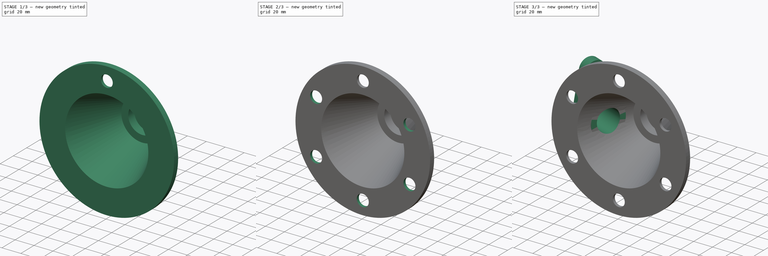
[diagram: build sequence overview — one tinted view per stage of 3, left to right]
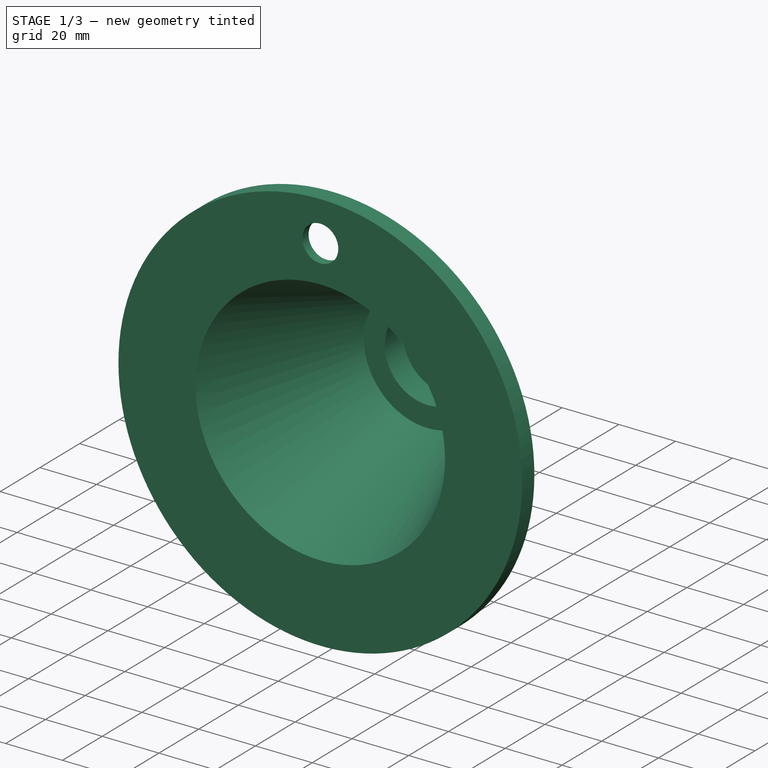
[diagram: stage 1 of 3 — iso view after this stage's code; geometry added in this stage tinted green]
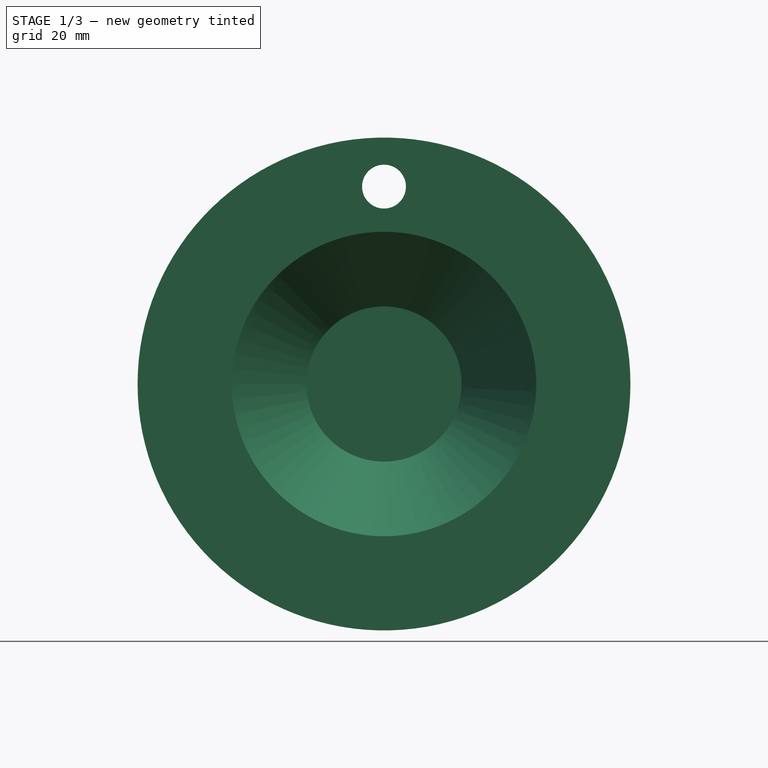
[diagram: stage 1 of 3 — front view after this stage's code; geometry added in this stage tinted green]
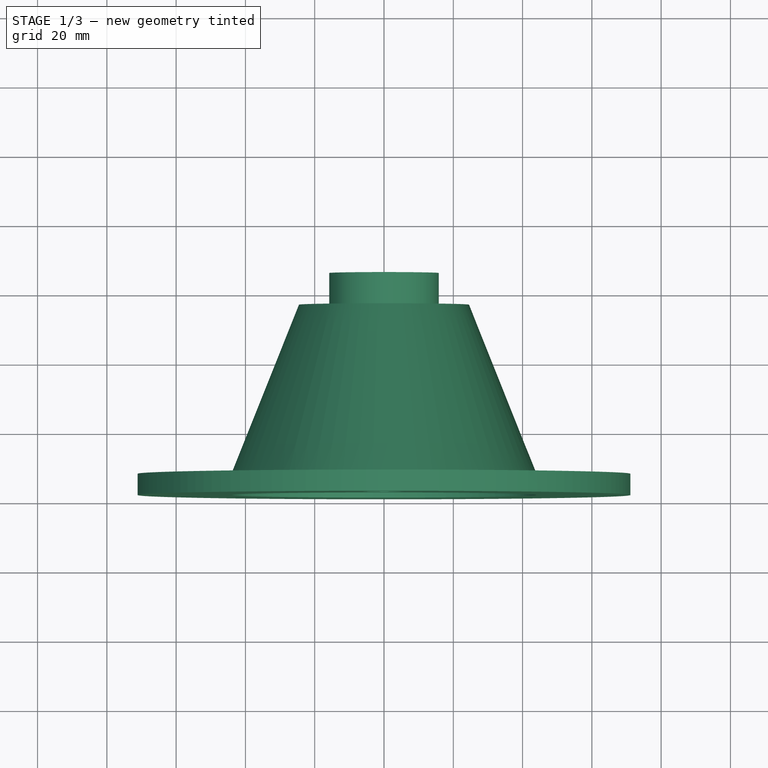
[diagram: stage 1 of 3 — top view after this stage's code; geometry added in this stage tinted green]
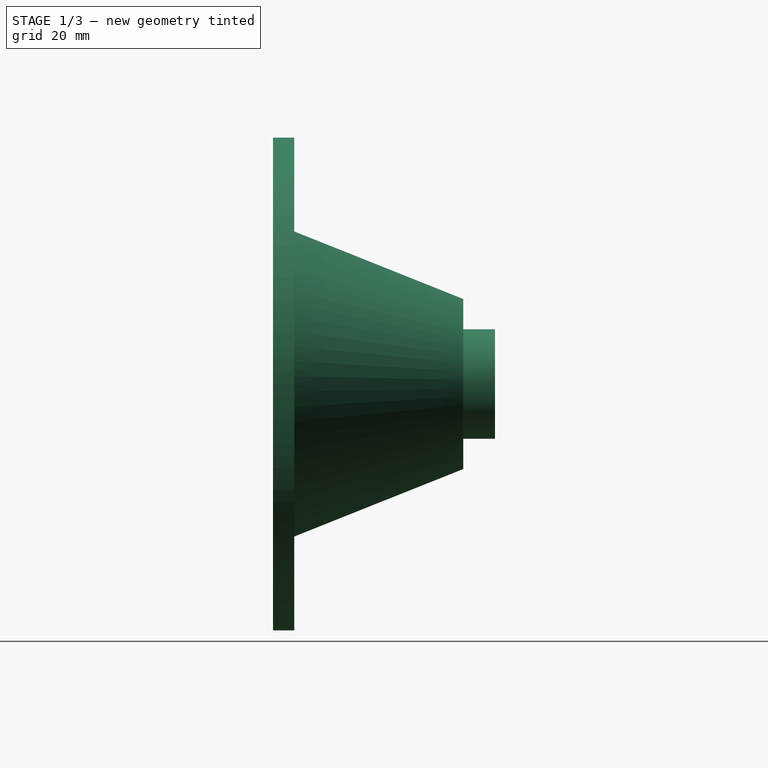
[diagram: stage 1 of 3 — right view after this stage's code; geometry added in this stage tinted green]
FCSTD DOCUMENT  (FreeCAD 0.21R33771 (Git))
Label: ex60
License: All rights reserved
LicenseURL: http://en.wikipedia.org/wiki/All_rights_reserved
objects: Sketcher::SketchObject×6, PartDesign::Pocket×3, PartDesign::Pad×2, PartDesign::Revolution×1, PartDesign::Chamfer×1, PartDesign::PolarPattern×1, PartDesign::Plane×1, PartDesign::Body×1
note: 23 computed .brp shape members not serialized (recipe doc carries the construction recipe); baked Part::Feature solids carry a one-line shape summary decoded from their .brp

FEATURE [Sketcher::SketchObject] Sketch
  FullyConstrained = false
  MapMode = 5
  Support = -> [XY_Plane]
  sketch-geometry (13):
    g0: LineSegment StartX=0 StartY=45.3142 StartZ=0 EndX=-15.7988 EndY=45.3142 EndZ=0
    g1: LineSegment StartX=-15.7988 StartY=45.3142 StartZ=0 EndX=-15.7988 EndY=36.1568 EndZ=0
    g2: LineSegment StartX=-15.0582 StartY=44.3428 StartZ=0 EndX=0 EndY=44.3428 EndZ=0
    g3: LineSegment StartX=0 StartY=44.3428 StartZ=0 EndX=0 EndY=45.3142 EndZ=0
    g4: LineSegment StartX=-15.0582 StartY=44.3428 StartZ=0 EndX=-15.0582 EndY=35.1568 EndZ=0
    g5: LineSegment StartX=-15.0582 StartY=35.1568 StartZ=0 EndX=-17.275 EndY=35.1568 EndZ=0
    g6: LineSegment StartX=-17.275 StartY=35.1568 StartZ=0 EndX=-22.3883 EndY=35.1568 EndZ=0
    g7: LineSegment StartX=-24.5451 StartY=36.1568 StartZ=0 EndX=-15.7988 EndY=36.1568 EndZ=0
    g8: LineSegment StartX=-24.5451 StartY=36.1568 StartZ=0 EndX=-44.0492 EndY=-12.6519 EndZ=0
    g9: LineSegment StartX=-22.3883 StartY=35.1568 StartZ=0 EndX=-43.9407 EndY=-18.7779 EndZ=0
    g10: LineSegment StartX=-44.0492 StartY=-12.6519 StartZ=0 EndX=-71.1315 EndY=-12.6519 EndZ=0
    g11: LineSegment StartX=-71.1315 StartY=-12.6519 StartZ=0 EndX=-71.1315 EndY=-18.7779 EndZ=0
    g12: LineSegment StartX=-43.9407 StartY=-18.7779 StartZ=0 EndX=-71.1315 EndY=-18.7779 EndZ=0
  constraints (26):
    c: Coincident(g0,g1)
    c: Coincident(g2,g3)
    c: Coincident(g3,g0)
    c: Horizontal(g0)
    c: Horizontal(g2)
    c: Vertical(g1)
    c: Vertical(g3)
    c: PointOnObject(g0,g-2)
    c: Coincident(g4,g5)
    c: Horizontal(g5)
    c: Vertical(g4)
    c: Horizontal(g6)
    c: Horizontal(g7)
    c: Coincident(g6,g5)
    c: DistanceY(g5,g7) = 1
    c: Coincident(g9,g6)
    c: Parallel(g8,g9)
    c: Coincident(g10,g11)
    c: Horizontal(g10)
    c: Vertical(g11)
    c: Coincident(g10,g8)
    c: Horizontal(g12)
    c: Coincident(g11,g12)
    c: Coincident(g9,g12)
    c: Coincident(g1,g7)
    c: Coincident(g7,g8)
FEATURE [PartDesign::Revolution] Revolution
  Angle = 360
  Axis = (0,1,0)
  Base = (0,0,0)
  Profile = -> Sketch
  ReferenceAxis = -> Sketch [V_Axis]
  Refine = true
FEATURE [Sketcher::SketchObject] Sketch001
  FullyConstrained = false
  MapMode = 5
  Placement = pos=(0,-12.6519,0) rot=(0,0.707107,0.707107;3.14159rad)
  Support = -> [Revolution]
  sketch-geometry (1):
    g0: Circle CenterX=0 CenterY=56.9745 CenterZ=0 NormalX=0 NormalY=0 NormalZ=1 AngleXU=0 Radius=6.32854
  constraints (1):
    c: PointOnObject(g0,g-2)
FEATURE [PartDesign::Pocket] Pocket
  BaseFeature = -> Revolution
  Direction = (0,-1,2e-16)
  Length = 5
  Length2 = 5
  Profile = -> Sketch001
  ReferenceAxis = -> Sketch001 [N_Axis]
  Refine = true
  Type = 1
FEATURE [PartDesign::Chamfer] Chamfer
  Angle = 45
  Base = -> Pocket [Edge8]
  BaseFeature = -> Pocket
  ChamferType = 0
  FlipDirection = false
  Refine = true
  Size = 3
  Size2 = 1
  SupportTransform = false
  UseAllEdges = false
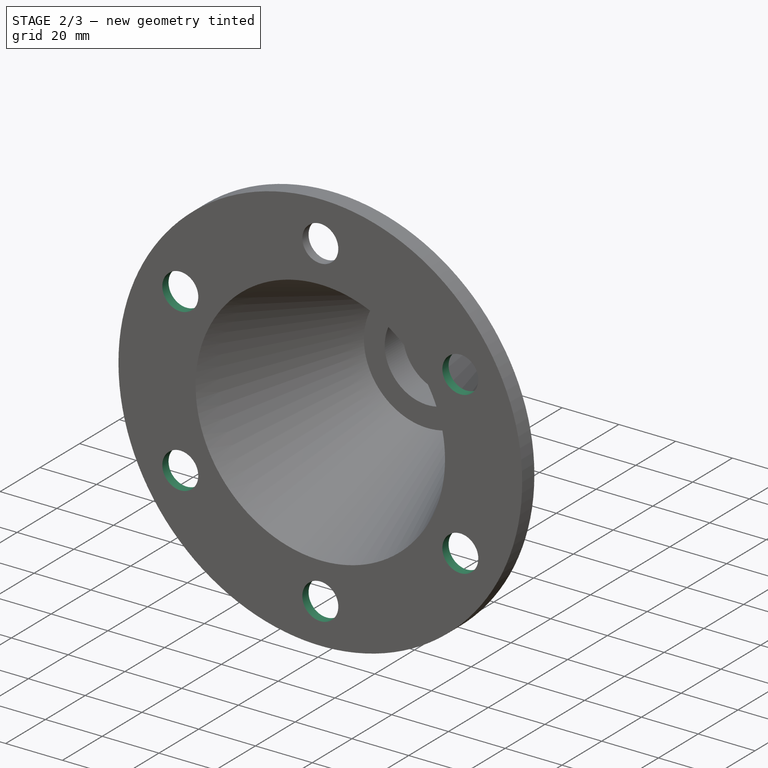
[diagram: stage 2 of 3 — iso view after this stage's code; geometry added in this stage tinted green]
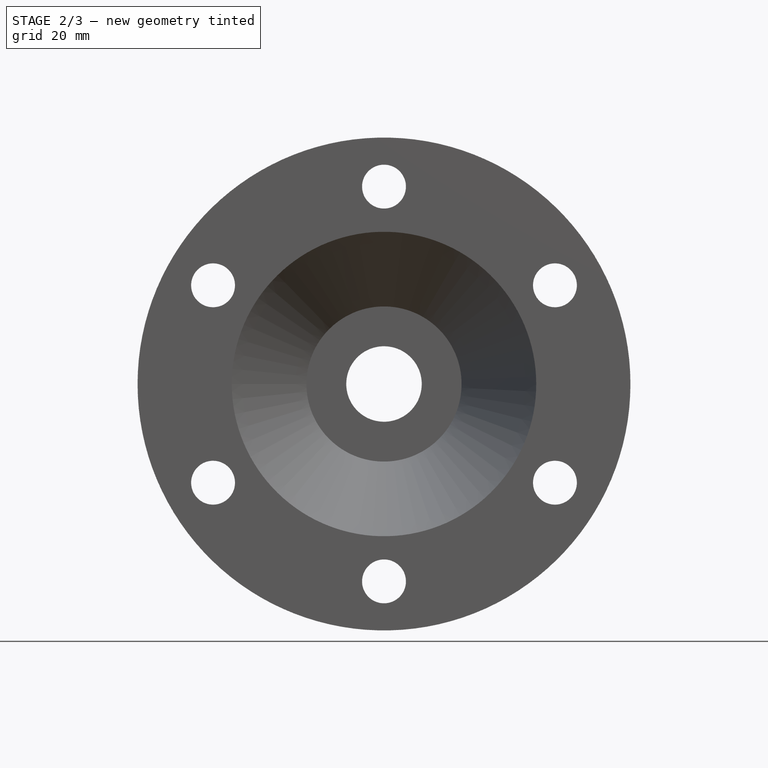
[diagram: stage 2 of 3 — front view after this stage's code; geometry added in this stage tinted green]
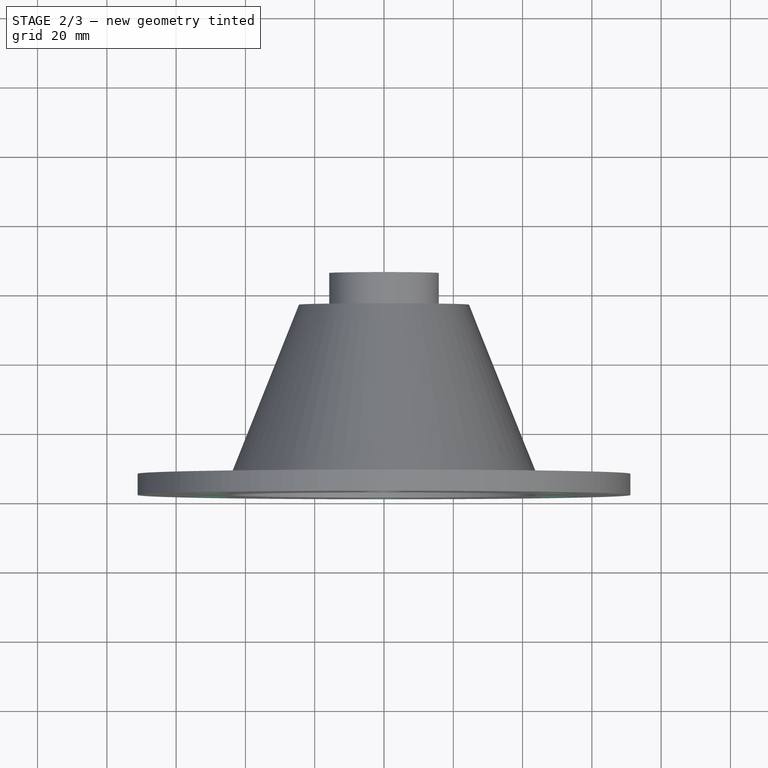
[diagram: stage 2 of 3 — top view after this stage's code; geometry added in this stage tinted green]
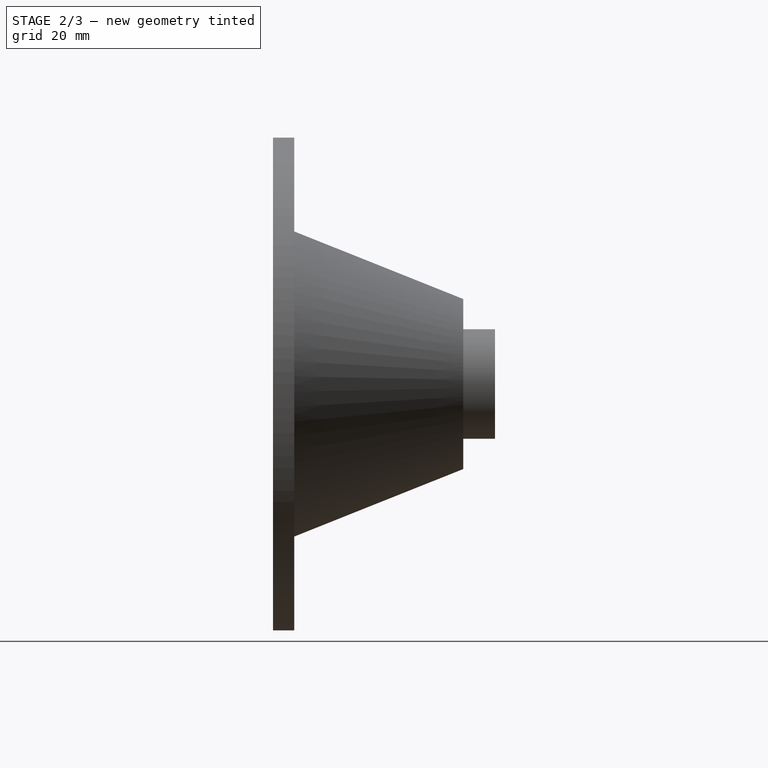
[diagram: stage 2 of 3 — right view after this stage's code; geometry added in this stage tinted green]
FEATURE [PartDesign::PolarPattern] PolarPattern
  Angle = 360
  Axis = -> Sketch001 [N_Axis]
  BaseFeature = -> Chamfer
  Occurrences = 6
  Originals = -> [Pocket,Chamfer]
  Refine = true
FEATURE [Sketcher::SketchObject] Sketch002
  FullyConstrained = false
  MapMode = 5
  Placement = pos=(0,45.3142,0) rot=(0,0.707107,0.707107;3.14159rad)
  Support = -> [PolarPattern]
  sketch-geometry (1):
    g0: Circle CenterX=0 CenterY=0 CenterZ=0 NormalX=0 NormalY=0 NormalZ=1 AngleXU=0 Radius=10.8914
  constraints (1):
    c: Coincident(g0,g-1)
FEATURE [PartDesign::Pocket] Pocket001
  BaseFeature = -> PolarPattern
  Direction = (0,-1,2e-16)
  Length = 15
  Length2 = 5
  Profile = -> Sketch002
  ReferenceAxis = -> Sketch002 [N_Axis]
  Refine = true
  Type = 0
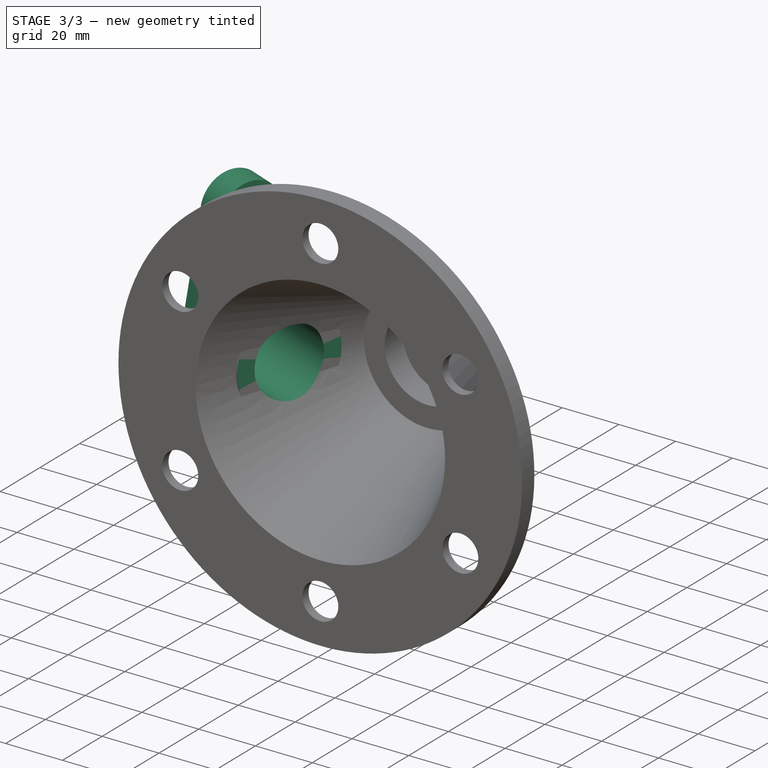
[diagram: stage 3 of 3 — iso view after this stage's code; geometry added in this stage tinted green]
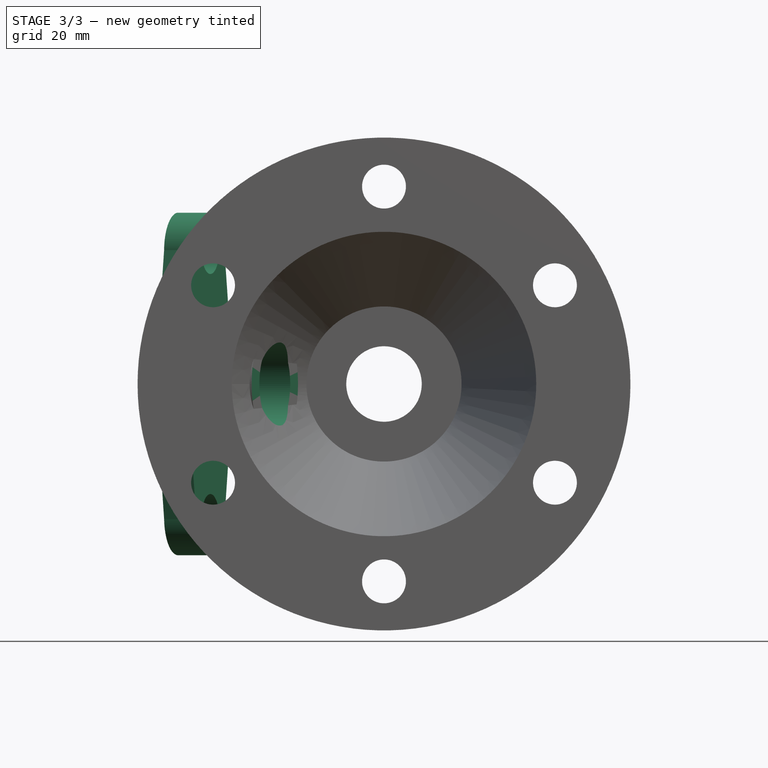
[diagram: stage 3 of 3 — front view after this stage's code; geometry added in this stage tinted green]
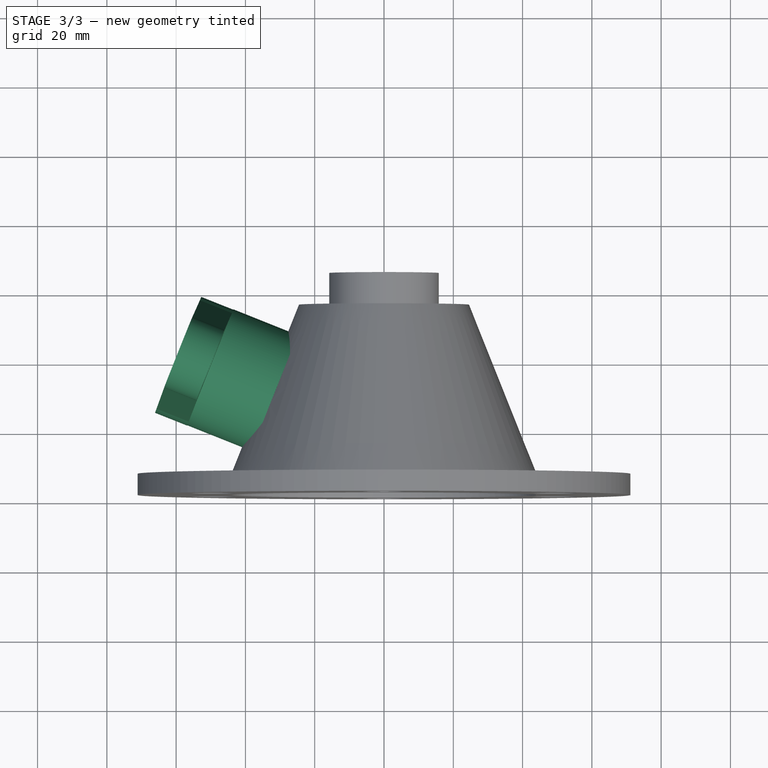
[diagram: stage 3 of 3 — top view after this stage's code; geometry added in this stage tinted green]
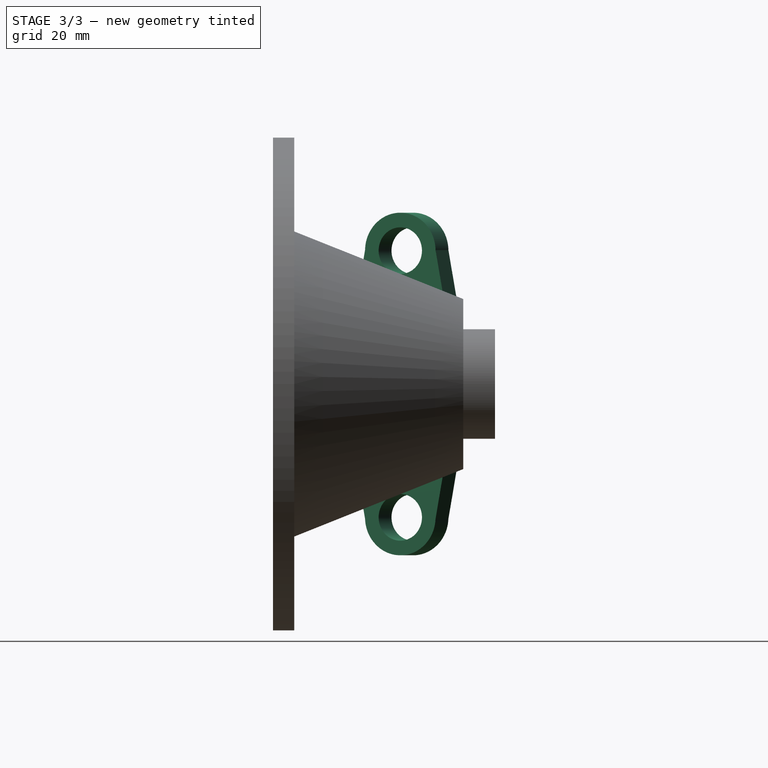
[diagram: stage 3 of 3 — right view after this stage's code; geometry added in this stage tinted green]
FEATURE [PartDesign::Plane] DatumPlane
  AttachmentOffset = pos=(0,0,0) rot=(-0.707107,0,0.707107;3.14159rad)
  Length = 143.875
  MapMode = 45
  Placement = pos=(-34.2972,11.7525,0) rot=(0.431933,-0.637744,0.637744;3.95705rad)
  ResizeMode = 0
  Support = -> [Sketch]
  Width = 168.017
FEATURE [Sketcher::SketchObject] Sketch003
  AttachmentOffset = pos=(0,0,-7) rot=(0,0,1;0rad)
  FullyConstrained = false
  MapMode = 5
  Placement = pos=(-40.7974,14.35,-4e-16) rot=(0.431933,-0.637744,0.637744;3.95705rad)
  Support = -> [DatumPlane]
  sketch-geometry (1):
    g0: Circle CenterX=0 CenterY=0 CenterZ=0 NormalX=0 NormalY=0 NormalZ=1 AngleXU=0 Radius=18.0037
  constraints (1):
    c: Coincident(g0,g-1)
FEATURE [PartDesign::Pad] Pad
  BaseFeature = -> Pocket001
  Direction = (0.928604,-0.371073,1e-16)
  Length = 10
  Length2 = 10
  Profile = -> Sketch003
  ReferenceAxis = -> Sketch003 [N_Axis]
  Refine = true
  Reversed = true
  Type = 4
FEATURE [Sketcher::SketchObject] Sketch004
  FullyConstrained = false
  MapMode = 5
  Placement = pos=(-49.4106,19.7446,-9.4e-15) rot=(-0.431933,0.637744,0.637744;3.95705rad)
  Support = -> [Pad]
  sketch-geometry (17):
    g0: ArcOfCircle CenterX=1.90782 CenterY=0 CenterZ=0 NormalX=0 NormalY=0 NormalZ=1 AngleXU=0 Radius=18.0096 StartAngle=2.78659 EndAngle=3.49659
    g1: LineSegment StartX=1.90782 StartY=38.4881 StartZ=0 EndX=1.90782 EndY=-38.4881 EndZ=0
    g2: ArcOfCircle CenterX=1.90782 CenterY=38.4881 CenterZ=0 NormalX=0 NormalY=0 NormalZ=1 AngleXU=0 Radius=10.9566 StartAngle=0.0142913 EndAngle=3.1273
    g3: ArcOfCircle CenterX=1.90782 CenterY=-38.4881 CenterZ=0 NormalX=0 NormalY=0 NormalZ=1 AngleXU=0 Radius=10.9566 StartAngle=3.18879 EndAngle=6.23599
    g4: LineSegment StartX=-9.04762 StartY=38.6447 StartZ=0 EndX=-14.9788 EndY=6.25998 EndZ=0
    g5: LineSegment StartX=-14.9788 StartY=-6.25998 StartZ=0 EndX=-9.03653 EndY=-39.0051 EndZ=0
    g6: LineSegment StartX=12.8522 StartY=-39.0051 StartZ=0 EndX=18.7944 EndY=-6.25998 EndZ=0
    g7: LineSegment StartX=18.7944 StartY=6.25998 StartZ=0 EndX=12.8633 EndY=38.6447 EndZ=0
    g8: LineSegment StartX=-9.04762 StartY=38.6447 StartZ=0 EndX=12.8633 EndY=38.6447 EndZ=0
    g9: LineSegment StartX=-14.9788 StartY=6.25998 StartZ=0 EndX=18.7944 EndY=6.25998 EndZ=0
    g10: LineSegment StartX=-14.9788 StartY=-6.25998 StartZ=0 EndX=18.7944 EndY=-6.25998 EndZ=0
    g11: LineSegment StartX=-14.9788 StartY=6.25998 StartZ=0 EndX=-14.9788 EndY=-6.25998 EndZ=0
    g12: LineSegment StartX=18.7944 StartY=-6.25998 StartZ=0 EndX=18.7944 EndY=6.25998 EndZ=0
    g13: LineSegment StartX=-9.03653 StartY=-39.0051 StartZ=0 EndX=12.8522 EndY=-39.0051 EndZ=0
    g14: ArcOfCircle CenterX=1.90782 CenterY=0 CenterZ=0 NormalX=0 NormalY=0 NormalZ=1 AngleXU=0 Radius=18.0096 StartAngle=5.92818 EndAngle=6.63819
    g15: Circle CenterX=1.90782 CenterY=38.4881 CenterZ=0 NormalX=0 NormalY=0 NormalZ=1 AngleXU=0 Radius=6.73373
    g16: Circle CenterX=1.90782 CenterY=-38.4881 CenterZ=0 NormalX=0 NormalY=0 NormalZ=1 AngleXU=0 Radius=6.73373
  constraints (38):
    c: PointOnObject(g0,g-1)
    c: Vertical(g1)
    c: Symmetric(g1,g1,g0)
    c: Coincident(g2,g1)
    c: Coincident(g3,g1)
    c: Equal(g3,g2)
    c: PointOnObject(g6,g0)
    c: PointOnObject(g7,g0)
    c: Coincident(g8,g4)
    c: Coincident(g8,g7)
    c: Horizontal(g8)
    c: Coincident(g9,g4)
    c: Coincident(g9,g7)
    c: Horizontal(g9)
    c: Coincident(g10,g5)
    c: Coincident(g10,g6)
    c: Horizontal(g10)
    c: Coincident(g11,g4)
    c: Coincident(g11,g5)
    c: Coincident(g12,g6)
    c: Coincident(g12,g7)
    c: Vertical(g12)
    c: Coincident(g13,g5)
    c: Coincident(g13,g6)
    c: Horizontal(g13)
    c: Coincident(g2,g7)
    c: Coincident(g2,g4)
    c: Coincident(g0,g4)
    c: Equal(g0,g14)
    c: Coincident(g0,g5)
    c: Coincident(g0,g14)
    c: Coincident(g3,g13)
    c: Coincident(g3,g6)
    c: PointOnObject(g14,g7)
    c: PointOnObject(g14,g6)
    c: Coincident(g15,g2)
    c: Coincident(g16,g3)
    c: Equal(g16,g15)
FEATURE [PartDesign::Pad] Pad001
  BaseFeature = -> Pad
  Direction = (-0.928604,0.371073,-2e-16)
  Length = 10
  Length2 = 10
  Profile = -> Sketch004
  ReferenceAxis = -> Sketch004 [N_Axis]
  Refine = true
  Type = 0
FEATURE [Sketcher::SketchObject] Sketch005
  FullyConstrained = false
  MapMode = 5
  Placement = pos=(-58.6966,23.4554,-1.18e-14) rot=(-0.431933,0.637744,0.637744;3.95705rad)
  Support = -> [Pad001]
  sketch-geometry (1):
    g0: Circle CenterX=1.84781 CenterY=0 CenterZ=0 NormalX=0 NormalY=0 NormalZ=1 AngleXU=0 Radius=11.997
  constraints (1):
    c: PointOnObject(g0,g-1)
FEATURE [PartDesign::Pocket] Pocket002
  BaseFeature = -> Pad001
  Direction = (0.928604,-0.371073,2e-16)
  Length = 35
  Length2 = 5
  Profile = -> Sketch005
  ReferenceAxis = -> Sketch005 [N_Axis]
  Refine = true
  Type = 0
FEATURE [PartDesign::Body] Body
  Group = -> [Sketch,Revolution,Sketch001,Pocket,Chamfer,PolarPattern,Sketch002,Pocket001,DatumPlane,Sketch003,Pad,Sketch004,Pad001,Sketch005,Pocket002]
  Origin = -> Origin
  Tip = -> Pocket002
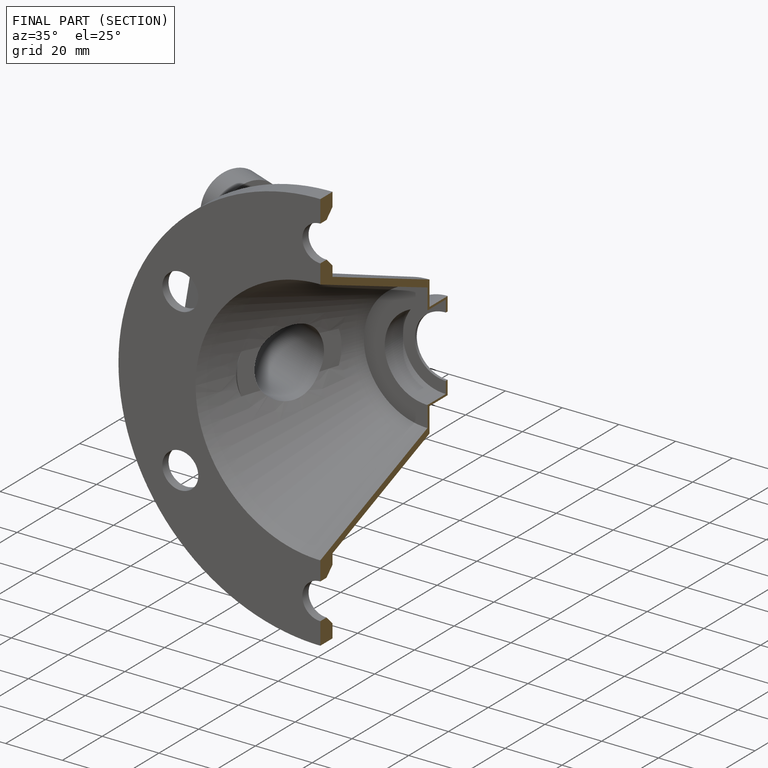
[diagram: finished part — half-section view (interior)]
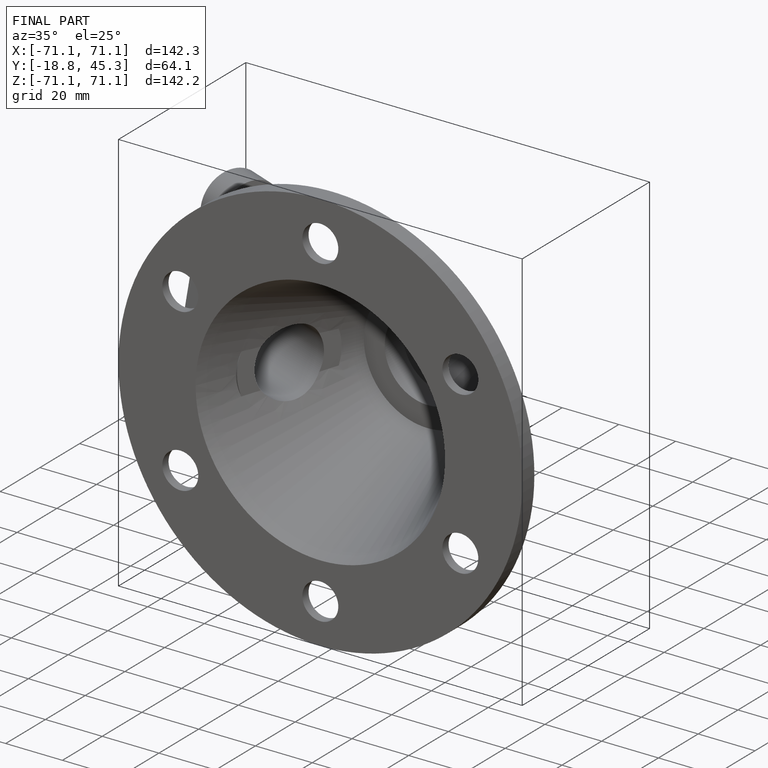
[diagram: finished part — iso view with bounding-box wireframe]
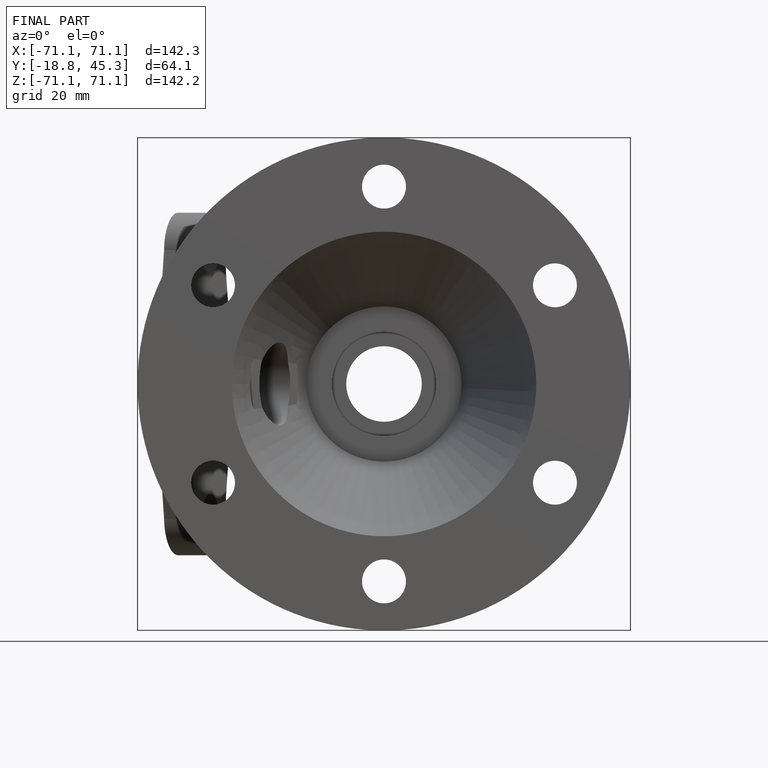
[diagram: finished part — front view with bounding-box wireframe]
